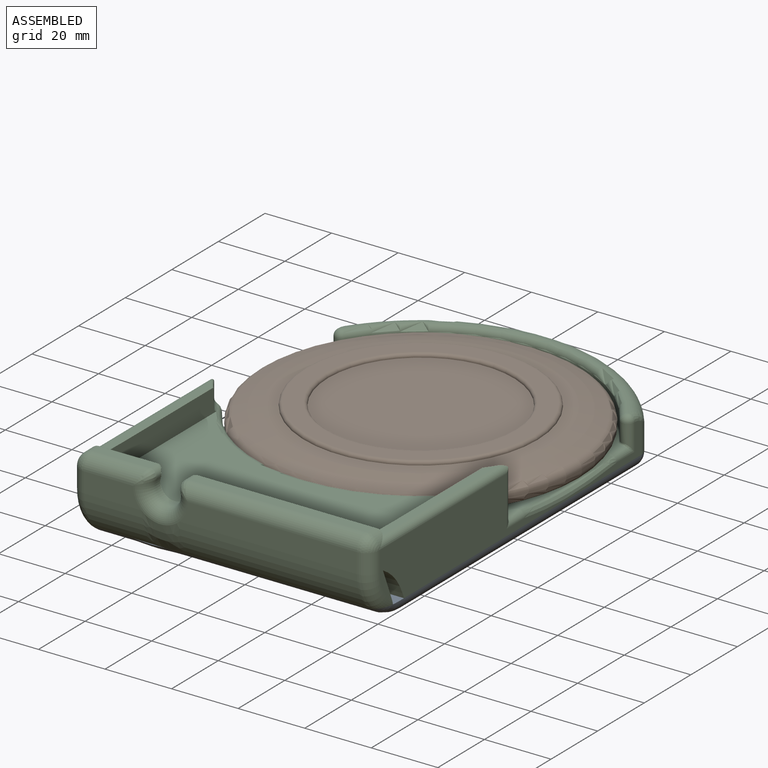
[diagram: assembled view]
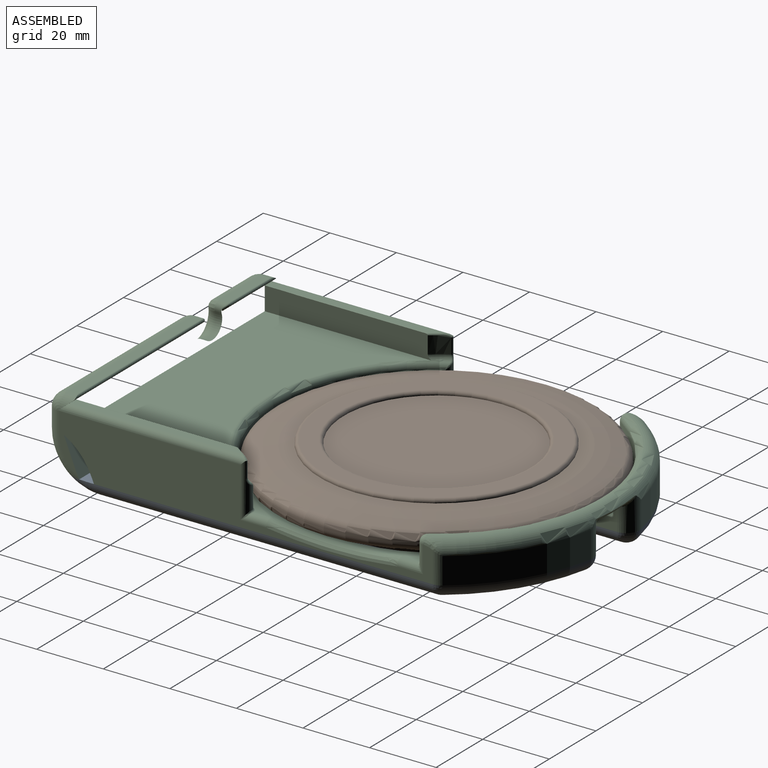
[diagram: assembled view, second angle]
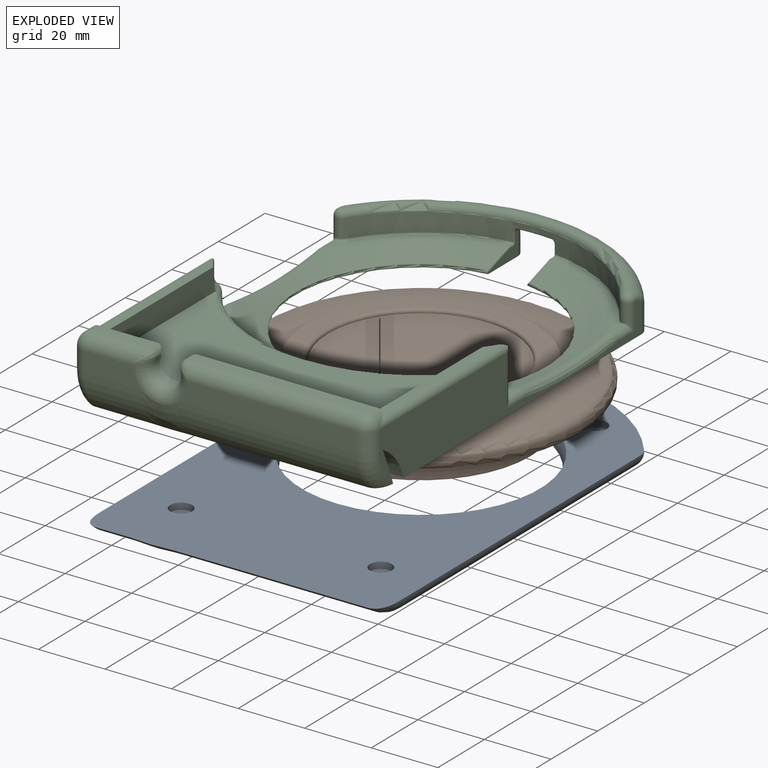
[diagram: exploded view]
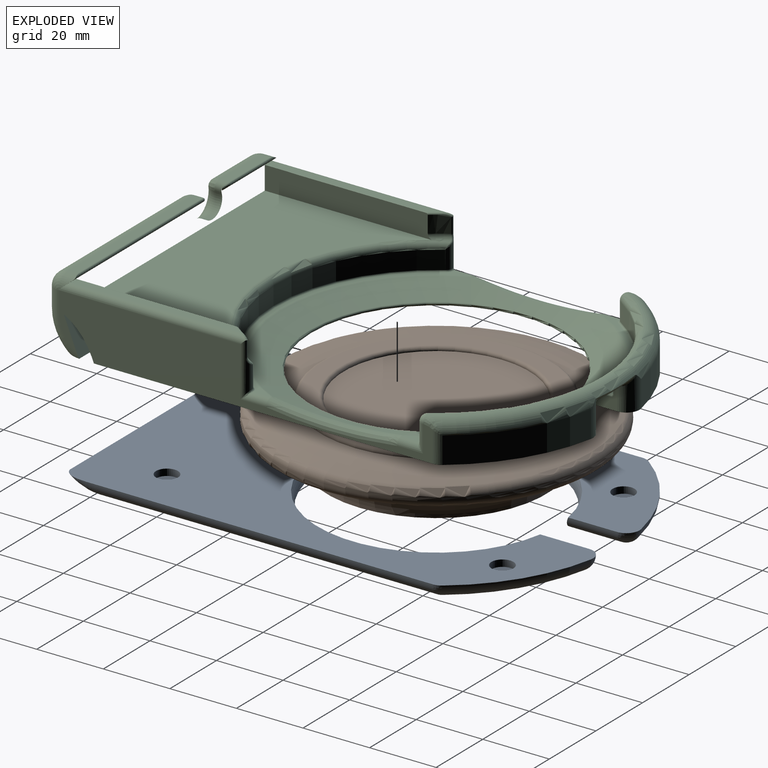
[diagram: exploded view, second angle]
ASSEMBLY  parts=3 mates=2
PART A: 26 faces, bbox 100.4x149.3x27.1 mm
  f0: plane 140.23x94.66mm, normal (0,0,1), area 7205.1mm2, adj f1,f2,f3,f4,f5,f6,f8,f9
  f1: torus R=45mm, axis (0,0,1), area 845.8mm2, adj f0,f7,f8,f16
  f2: torus R=11mm, axis (-1,0,0), area 33.4mm2, adj f0,f3,f10
  f3: cylinder r=15mm len=58.41mm, axis (1,0,0), area 655mm2, adj f0,f2,f4,f7
  f4: bspline ~15.36x15.32mm, area 134.1mm2, adj f0,f3,f5,f7
  f5: cylinder r=15mm len=10.41mm, axis (1,0,0), area 116.7mm2, adj f0,f4,f6,f7
  f6: torus R=11mm, axis (-1,0,0), area 33.4mm2, adj f0,f5,f11
  f7: plane 121.38x82mm, normal (0,0,-1), area 5322.2mm2, adj f1,f3,f4,f5,f8,f9,f10,f11
  f8: cylinder r=4mm len=16.47mm, axis (0,-1,0), area 97.9mm2, adj f0,f1,f7,f12
  f9: torus R=51mm, axis (0,0,1), area 247.8mm2, adj f0,f7,f12,f13
  f10: cylinder r=4mm len=101.29mm, axis (0,1,0), area 636.4mm2, adj f0,f2,f7,f13
  f11: cylinder r=4mm len=101.29mm, axis (0,-1,0), area 636.4mm2, adj f0,f6,f7,f14
  f12: sphere r=4mm, area 19.2mm2, adj f0,f8,f9
  f13: sphere r=4mm, area 6.5mm2, adj f0,f9,f10
  f14: sphere r=4mm, area 10.2mm2, adj f0,f11,f15
  f15: torus R=51mm, axis (0,0,1), area 247.8mm2, adj f0,f7,f14,f17
  f16: cylinder r=4mm len=16.47mm, axis (0,1,0), area 97.9mm2, adj f0,f1,f7,f17
  f17: sphere r=4mm, area 18mm2, adj f0,f15,f16
  f18: cylinder r=3.3mm len=6.6mm, axis (0,0,1), area 41.5mm2, adj f0,f19
  f19: plane 6.6x6.6mm, normal (0,0,1), area 34.3mm2, adj f18
  f20: cylinder r=3.3mm len=6.6mm, axis (0,0,1), area 41.5mm2, adj f0,f21
  f21: plane 6.6x6.6mm, normal (0,0,1), area 34.3mm2, adj f20
  f22: cylinder r=3.3mm len=6.6mm, axis (0,0,1), area 41.5mm2, adj f0,f23
  f23: plane 6.6x6.6mm, normal (0,0,1), area 34.3mm2, adj f22
  f24: cylinder r=3.3mm len=6.6mm, axis (0,0,1), area 41.5mm2, adj f0,f25
  f25: plane 6.6x6.6mm, normal (0,0,1), area 34.3mm2, adj f24
PART B: 13 faces, bbox 104.8x104.8x18.6 mm
  f0: torus R=34mm, axis (0,0,1), area 3039.4mm2, adj f1,f10
  f1: cylinder r=35mm len=70mm, axis (0,0,1), area 27.8mm2, adj f0,f11
  f2: plane 68x68mm, normal (0,0,1), area 1003.9mm2, adj f11,f12
  f3: cylinder r=27.92mm len=55.84mm, axis (0,0,1), area 22.2mm2, adj f4,f12
  f4: plane 55.84x55.84mm, normal (0,0,1), area 2449.2mm2, adj f3
  f5: plane 66x66mm, normal (0,0,-1), area 3421.2mm2, adj f8
  f6: plane 91.8x91.8mm, normal (0,0,-1), area 813.3mm2, adj f8,f9
  f7: cylinder r=48.4mm len=96.8mm, axis (0,0,1), area 213.6mm2, adj f9,f10
  f8: torus R=42.99mm, axis (0,0,1), area 3510.7mm2, adj f5,f6
  f9: torus R=45.9mm, axis (0,0,1), area 1171.8mm2, adj f6,f7
  f10: torus R=45.9mm, axis (0,0,-1), area 952.4mm2, adj f0,f7
  f11: torus R=34mm, axis (0,0,-1), area 341.8mm2, adj f1,f2
  f12: torus R=28.92mm, axis (0,0,-1), area 279.2mm2, adj f2,f3
PART C: 151 faces, bbox 102.5x151x26.9 mm
  f0: cylinder r=51mm len=5.04mm, axis (0,0,-1), area 28.7mm2, adj f4,f8,f139,f140,f141,f150
  f1: plane 51.66x2.5mm, normal (0,0,1), area 104.3mm2, adj f2,f25,f90,f91,f141,f150
  f2: cylinder r=2mm len=38.84mm, axis (0,-1,0), area 19.5mm2, adj f1,f8,f91,f150
  f3: bspline ~4.75x2.52mm, area 0.6mm2, adj f7,f27,f30
  f4: torus R=49mm, axis (0,0,-1), area 13mm2, adj f0,f9,f27,f30,f138,f148,f150
  f5: bspline ~4.16x2.37mm, area 0.6mm2, adj f9,f27,f30
  f6: torus R=12mm, axis (0,0,1), area 0.9mm2, adj f36,f56,f149
  f7: bspline ~0.81x0.63mm, area 0mm2, adj f3,f27,f88
  f8: bspline ~1.57x1.49mm, area 0.3mm2, adj f0,f2,f141,f150
  f9: bspline ~0.81x0.63mm, area 0mm2, adj f4,f5,f27
  f10: plane 36.5x28.3mm, normal (0,0,1), area 57.1mm2, adj f92,f104,f118,f122,f123
  f11: plane 86x28.74mm, normal (0,0,1), area 129.5mm2, adj f93,f99,f100,f143,f144,f145
  f12: plane 112.33x17mm, normal (-1,0,0), area 966.9mm2, adj f13,f17,f31,f34,f71,f72,f73,f86
  f13: plane 125.47x90mm, normal (0,0,-1), area 5846.3mm2, adj f12,f15,f16,f17,f22,f24,f43,f44
  f14: plane 91.84x7.51mm, normal (0,0,-1), area 457.9mm2, adj f18,f19,f20,f71,f83,f87
  f15: plane 112.33x17mm, normal (1,0,0), area 966.9mm2, adj f13,f16,f29,f32,f71,f72,f73,f82
  f16: cylinder r=4mm len=9.17mm, axis (0,0,1), area 21.9mm2, adj f13,f15,f24,f108
  f17: cylinder r=4mm len=9.17mm, axis (0,0,1), area 21.9mm2, adj f12,f13,f22,f105
  f18: cylinder r=15mm len=17.34mm, axis (1,0,0), area 214.1mm2, adj f14,f19,f21,f87
  f19: bspline ~11.7x11.33mm, area 130.3mm2, adj f14,f18,f20,f50
  f20: cylinder r=15mm len=53.34mm, axis (1,0,0), area 658.6mm2, adj f14,f19,f40,f83
  f21: plane 17.34x6mm, normal (0,-1,0), area 93.3mm2, adj f18,f50,f51,f86
  f22: cylinder r=55mm len=33.43mm, axis (0,0,1), area 324.1mm2, adj f13,f17,f47,f48
  f23: cylinder r=49mm len=82.63mm, axis (0,0,-1), area 491.3mm2, adj f32,f33,f34,f121,f122,f126,f127,f128
  f24: cylinder r=55mm len=33.43mm, axis (0,0,1), area 324.1mm2, adj f13,f16,f45,f47
  f25: plane 22.89x3.86mm, normal (0,0.64,-0.76), area 37.5mm2, adj f1,f37,f76,f77,f84,f85,f90
  f26: plane 17.08x3mm, normal (0,0,1), area 51.3mm2, adj f51,f54,f76,f84
  f27: plane 81.07x50.07mm, normal (0,0,1), area 2843.9mm2, adj f3,f4,f5,f7,f9,f30,f37,f88
  f28: cylinder r=49mm len=82.63mm, axis (0,0,-1), area 540.7mm2, adj f29,f30,f31,f144
  f29: cylinder r=2mm len=16.18mm, axis (0,0,-1), area 46.2mm2, adj f15,f28,f89,f131,f132,f133,f134,f142
  f30: torus R=51mm, axis (0,0,1), area 298.2mm2, adj f3,f4,f5,f27,f28,f88,f131,f137
  f31: cylinder r=2mm len=16.18mm, axis (0,0,-1), area 46.2mm2, adj f12,f28,f90,f137,f138,f139,f140,f145
  f32: cylinder r=2mm len=8mm, axis (0,0,-1), area 32.2mm2, adj f15,f23,f110,f114,f118
  f33: torus R=51mm, axis (0,0,1), area 313.4mm2, adj f23,f47,f107,f110
  f34: cylinder r=2mm len=8mm, axis (0,0,-1), area 32.2mm2, adj f12,f23,f107,f113,f117
  f35: cylinder r=51mm len=5.04mm, axis (0,0,-1), area 28.7mm2, adj f88,f133,f134,f135,f136,f149
  f36: plane 51.66x2.5mm, normal (0,0,1), area 104.3mm2, adj f6,f38,f56,f89,f135,f149
  f37: plane 81x7.87mm, normal (0,1,0), area 522.4mm2, adj f25,f27,f38,f41,f52,f54,f77,f79
  f38: plane 58.89x3.86mm, normal (0,0.64,-0.76), area 100mm2, adj f36,f37,f78,f79,f80,f81,f89
  f39: plane 53.08x3mm, normal (0,0,1), area 159.4mm2, adj f49,f52,f78,f80
  f40: plane 53.34x6mm, normal (0,-1,0), area 309.3mm2, adj f20,f49,f50,f82
  f41: cylinder r=4.25mm len=8.5mm, axis (0,-1,0), area 32.2mm2, adj f37,f50,f52,f54
  f42: plane 10.11x1.75mm, normal (0,0,-1), area 15.1mm2, adj f46,f57,f58,f60,f61,f130
  f43: plane 12.91x7.02mm, normal (1,0,0), area 33.7mm2, adj f13,f48,f60,f111,f112,f116,f120,f124
  f44: plane 12.91x7.02mm, normal (-1,0,0), area 33.7mm2, adj f13,f45,f57,f111,f115,f119,f123,f125
  f45: cylinder r=4mm len=9.79mm, axis (0,0,1), area 57.6mm2, adj f13,f24,f44,f47,f58,f59
  f46: torus R=51mm, axis (0,0,-1), area 55.4mm2, adj f42,f47,f59,f62
  f47: torus R=51mm, axis (0,0,1), area 608.9mm2, adj f22,f24,f33,f45,f46,f48,f59,f62
  f48: cylinder r=4mm len=9.79mm, axis (0,0,1), area 57.6mm2, adj f13,f22,f43,f47,f61,f62
  f49: cylinder r=4mm len=53.08mm, axis (-1,0,0), area 326.2mm2, adj f39,f40,f53,f81
  f50: torus R=8.25mm, axis (0,-1,0), area 122.8mm2, adj f19,f21,f40,f41,f53,f55
  f51: cylinder r=4mm len=17.08mm, axis (-1,0,0), area 100mm2, adj f21,f26,f55,f85
  f52: cylinder r=2mm len=3mm, axis (0,-1,0), area 8.7mm2, adj f37,f39,f41,f53,f79
  f53: bspline ~5.12x4.88mm, area 11.3mm2, adj f49,f50,f52
  f54: cylinder r=2mm len=3mm, axis (0,-1,0), area 8.7mm2, adj f26,f37,f41,f55,f77
  f55: bspline ~5.12x4.88mm, area 11.3mm2, adj f50,f51,f54
  f56: cylinder r=2mm len=38.84mm, axis (0,1,0), area 19.5mm2, adj f6,f36,f136,f149
  f57: cylinder r=1mm len=1mm, axis (0,-1,0), area 1.3mm2, adj f42,f44,f58,f129
  f58: torus R=5mm, axis (0,0,-1), area 1mm2, adj f42,f45,f57,f59
  f59: bspline ~4.06x4.01mm, area 6.1mm2, adj f45,f46,f47,f58
  f60: cylinder r=1mm len=1mm, axis (0,1,0), area 1.3mm2, adj f42,f43,f61,f128
  f61: torus R=5mm, axis (0,0,-1), area 1mm2, adj f42,f48,f60,f62
  f62: bspline ~4.06x4.01mm, area 6.1mm2, adj f46,f47,f48,f61
  f63: cylinder r=3.3mm len=6.6mm, axis (0,0,-1), area 41.5mm2, adj f13,f64
  f64: plane 6.6x6.6mm, normal (0,0,-1), area 34.3mm2, adj f63
  f65: cylinder r=3.3mm len=6.6mm, axis (0,0,-1), area 41.5mm2, adj f13,f66
  f66: plane 6.6x6.6mm, normal (0,0,-1), area 34.3mm2, adj f65
  f67: cylinder r=3.3mm len=6.6mm, axis (0,0,-1), area 41.5mm2, adj f13,f68
  f68: plane 6.6x6.6mm, normal (0,0,-1), area 34.3mm2, adj f67
  f69: cylinder r=3.3mm len=6.6mm, axis (0,0,-1), area 41.5mm2, adj f13,f70
  f70: plane 6.6x6.6mm, normal (0,0,-1), area 34.3mm2, adj f69
  f71: plane 90.08x11.08mm, normal (0,0.93,0.38), area 1069.9mm2, adj f12,f14,f15,f72,f83,f87
  f72: cylinder r=18.93mm len=90mm, axis (-1,0,0), area 1157mm2, adj f12,f15,f71,f73
  f73: plane 90x1.59mm, normal (0,-0.93,-0.38), area 155.1mm2, adj f12,f13,f15,f72
  f74: plane 36.5x28.3mm, normal (0,0,1), area 57.1mm2, adj f94,f95,f117,f120,f121
  f75: cone r=35mm half-angle=71.6deg, axis (0,0,1), area 2336.1mm2, adj f92,f93,f94,f97,f102,f111,f112,f115
  f76: cylinder r=0.5mm len=19.58mm, axis (-1,0,0), area 22.4mm2, adj f25,f26,f77,f84
  f77: bspline ~2.99x2.67mm, area 3.1mm2, adj f25,f37,f54,f76
  f78: cylinder r=0.5mm len=55.58mm, axis (-1,0,0), area 66.3mm2, adj f38,f39,f79,f80
  f79: bspline ~2.99x2.67mm, area 3.1mm2, adj f37,f38,f52,f78
  f80: cylinder r=4mm len=3.99mm, axis (0,-1,0), area 14mm2, adj f38,f39,f78,f81
  f81: sphere r=4mm, area 25.1mm2, adj f38,f49,f80,f82,f89
  f82: cylinder r=4mm len=6mm, axis (0,0,-1), area 37.7mm2, adj f15,f40,f81,f83
  f83: torus R=11mm, axis (-1,0,0), area 79.9mm2, adj f14,f15,f20,f71,f82
  f84: cylinder r=4mm len=3.99mm, axis (0,1,0), area 14mm2, adj f25,f26,f76,f85
  f85: sphere r=4mm, area 25.1mm2, adj f25,f51,f84,f86,f90
  f86: cylinder r=4mm len=6mm, axis (0,0,1), area 37.7mm2, adj f12,f21,f85,f87
  f87: torus R=11mm, axis (-1,0,0), area 79.9mm2, adj f12,f14,f18,f71,f86
  f88: torus R=49mm, axis (0,0,-1), area 13mm2, adj f7,f27,f30,f35,f132,f147,f149
  f89: cylinder r=2mm len=55.84mm, axis (0,-1,0), area 168.6mm2, adj f15,f29,f36,f38,f81,f134
  f90: cylinder r=2mm len=55.84mm, axis (0,1,0), area 168.6mm2, adj f1,f12,f25,f31,f85,f140
  f91: torus R=12mm, axis (0,0,1), area 0.9mm2, adj f1,f2,f150
  f92: torus R=47.32mm, axis (0,0,1), area 30.3mm2, adj f10,f75,f103,f119
  f93: torus R=47.32mm, axis (0,0,1), area 69mm2, adj f11,f75,f98,f101
  f94: torus R=47.32mm, axis (0,0,1), area 30.3mm2, adj f74,f75,f96,f116
  f95: cylinder r=2mm len=7.66mm, axis (0,1,0), area 20.1mm2, adj f12,f74,f96,f113
  f96: sphere r=2mm, area 0.6mm2, adj f94,f95,f97
  f97: bspline ~55.61x5.31mm, area 147.8mm2, adj f12,f75,f96,f98
  f98: sphere r=2mm, area 0.6mm2, adj f93,f97,f99
  f99: cylinder r=2mm len=7.66mm, axis (0,1,0), area 20.1mm2, adj f11,f12,f98,f146
  f100: cylinder r=2mm len=7.66mm, axis (0,-1,0), area 20.1mm2, adj f11,f15,f101,f142
  f101: sphere r=2mm, area 0.4mm2, adj f93,f100,f102
  f102: bspline ~55.61x5.31mm, area 147.8mm2, adj f15,f75,f101,f103
  f103: sphere r=2mm, area 0.6mm2, adj f92,f102,f104
  f104: cylinder r=2mm len=7.66mm, axis (0,-1,0), area 20.1mm2, adj f10,f15,f103,f114
  f105: bspline ~3.26x2.99mm, area 1.6mm2, adj f17,f47,f106
  f106: bspline ~5.12x3.37mm, area 9.1mm2, adj f12,f47,f105,f107
  f107: sphere r=2mm, area 12.6mm2, adj f33,f34,f106
  f108: bspline ~3.26x2.99mm, area 1.6mm2, adj f16,f47,f109
  f109: bspline ~5.12x3.37mm, area 9.1mm2, adj f15,f47,f108,f110
  f110: sphere r=2mm, area 8mm2, adj f32,f33,f109
  f111: torus R=38.08mm, axis (0,0,-1), area 317mm2, adj f13,f43,f44,f75,f112,f115
  f112: bspline ~28.96x9.98mm, area 7.3mm2, adj f43,f75,f111,f116
  f113: bspline ~2.5x2.5mm, area 1.1mm2, adj f34,f95,f117
  f114: bspline ~2.5x2.5mm, area 1.1mm2, adj f32,f104,f118
  f115: bspline ~28.96x9.98mm, area 7.3mm2, adj f44,f75,f111,f119
  f116: bspline ~1.5x0.72mm, area 0.5mm2, adj f43,f94,f112,f120
  f117: torus R=2.5mm, axis (0,0,1), area 1.7mm2, adj f34,f74,f113,f121
  f118: torus R=2.5mm, axis (0,0,1), area 1.7mm2, adj f10,f32,f114,f122
  f119: bspline ~1.2x0.61mm, area 0.5mm2, adj f44,f92,f115,f123
  f120: cylinder r=0.5mm len=1.19mm, axis (0,1,0), area 0.9mm2, adj f43,f74,f116,f124
  f121: torus R=48.5mm, axis (0,0,1), area 33.4mm2, adj f23,f74,f117,f124
  f122: torus R=48.5mm, axis (0,0,1), area 33.4mm2, adj f10,f23,f118,f125
  f123: cylinder r=0.5mm len=1.19mm, axis (0,-1,0), area 0.9mm2, adj f10,f44,f119,f125
  f124: bspline ~1.22x1.18mm, area 0.8mm2, adj f43,f120,f121,f126
  f125: bspline ~1.24x1.18mm, area 0.8mm2, adj f44,f122,f123,f127
  f126: cylinder r=0.5mm len=2.5mm, axis (0,0,-1), area 1.8mm2, adj f23,f43,f124,f128
  f127: cylinder r=0.5mm len=2.5mm, axis (0,0,-1), area 1.8mm2, adj f23,f44,f125,f129
  f128: bspline ~1.83x1.82mm, area 1.4mm2, adj f23,f60,f126,f130
  f129: bspline ~1.83x1.82mm, area 1.4mm2, adj f23,f57,f127,f130
  f130: torus R=49.5mm, axis (0,0,-1), area 7.8mm2, adj f23,f42,f128,f129
  f131: bspline ~2.08x1.87mm, area 0.6mm2, adj f29,f30,f132
  f132: bspline ~2.79x2mm, area 2mm2, adj f29,f88,f131,f133
  f133: cylinder r=0.5mm len=4.72mm, axis (0,0,1), area 4.4mm2, adj f29,f35,f132,f134
  f134: bspline ~4.05x2.7mm, area 2.6mm2, adj f29,f35,f89,f133,f135
  f135: torus R=51.5mm, axis (0,0,1), area 2.7mm2, adj f35,f36,f134,f136
  f136: bspline ~1.31x1.27mm, area 0.3mm2, adj f35,f56,f135,f149
  f137: bspline ~2.08x1.87mm, area 0.6mm2, adj f30,f31,f138
  f138: bspline ~2.79x2mm, area 2mm2, adj f4,f31,f137,f139
  f139: cylinder r=0.5mm len=4.72mm, axis (0,0,1), area 4.4mm2, adj f0,f31,f138,f140
  f140: bspline ~4.05x2.7mm, area 2.6mm2, adj f0,f31,f90,f139,f141
  f141: torus R=51.5mm, axis (0,0,1), area 2.7mm2, adj f0,f1,f8,f140
  f142: bspline ~2.5x2.5mm, area 1.1mm2, adj f29,f100,f143
  f143: torus R=2.5mm, axis (0,0,1), area 1.7mm2, adj f11,f29,f142,f144
  f144: torus R=48.5mm, axis (0,0,1), area 76.9mm2, adj f11,f28,f143,f145
  f145: torus R=2.5mm, axis (0,0,1), area 1.7mm2, adj f11,f31,f144,f146
  f146: bspline ~2.5x2.5mm, area 1.1mm2, adj f31,f99,f145
  f147: plane 0.05x0.04mm, normal (0,-1,0), area 0mm2, adj f27,f88,f149
  f148: plane 0.05x0.04mm, normal (0,-1,0), area 0mm2, adj f4,f27,f150
  f149: plane 50.26x7.26mm, normal (-1,0,0), area 340.9mm2, adj f6,f27,f35,f36,f37,f56,f88,f136
  f150: plane 50.26x7.26mm, normal (1,0,0), area 340.9mm2, adj f0,f1,f2,f4,f8,f27,f37,f91
PLACE A t=(-0.29,15.92,-12.99)mm
PLACE B t=(-0.29,15.92,-3.49)mm
PLACE C t=(-0.29,15.92,-12.99)mm
MATE fastened C.f0 <-> A.f1  axis (0,0,-1) through (-0.29,15.92,-8.99)mm
MATE fastened B.f0 <-> A.f1  axis (0,0,-1) through (-0.29,15.92,-12.99)mm
